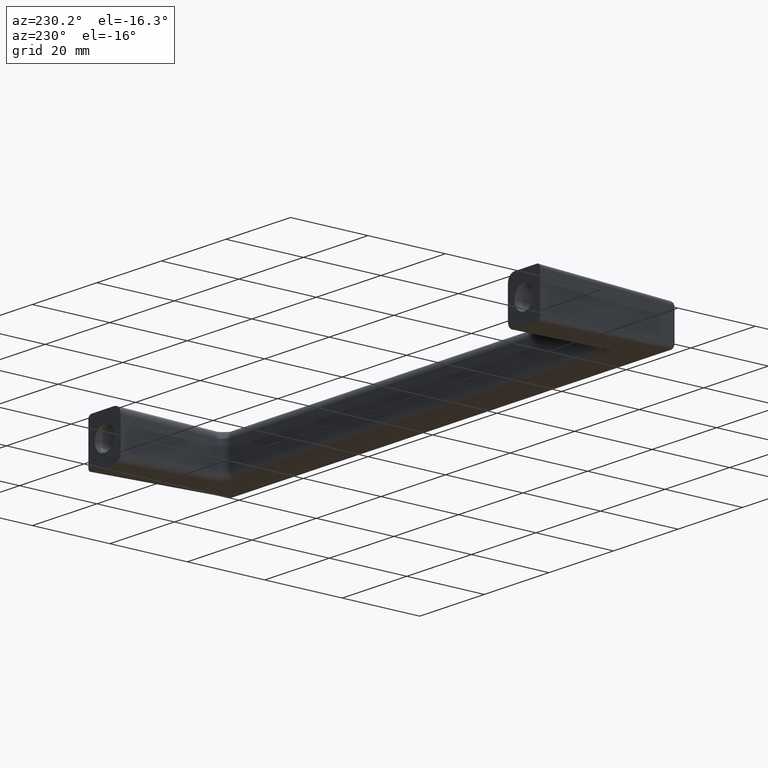
[diagram: clean part render]
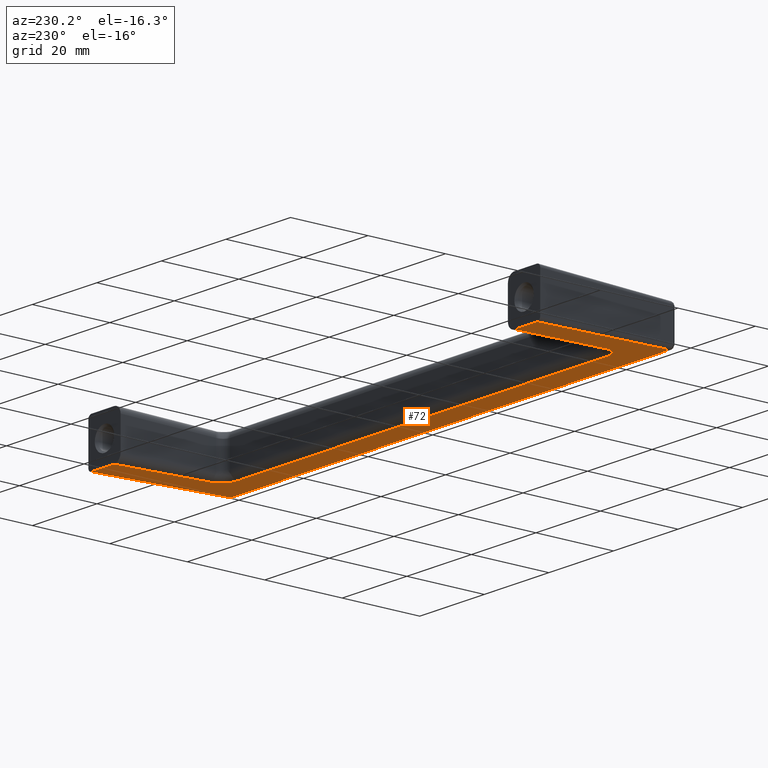
[diagram: same view with one face highlighted and labeled with its STEP entity id]
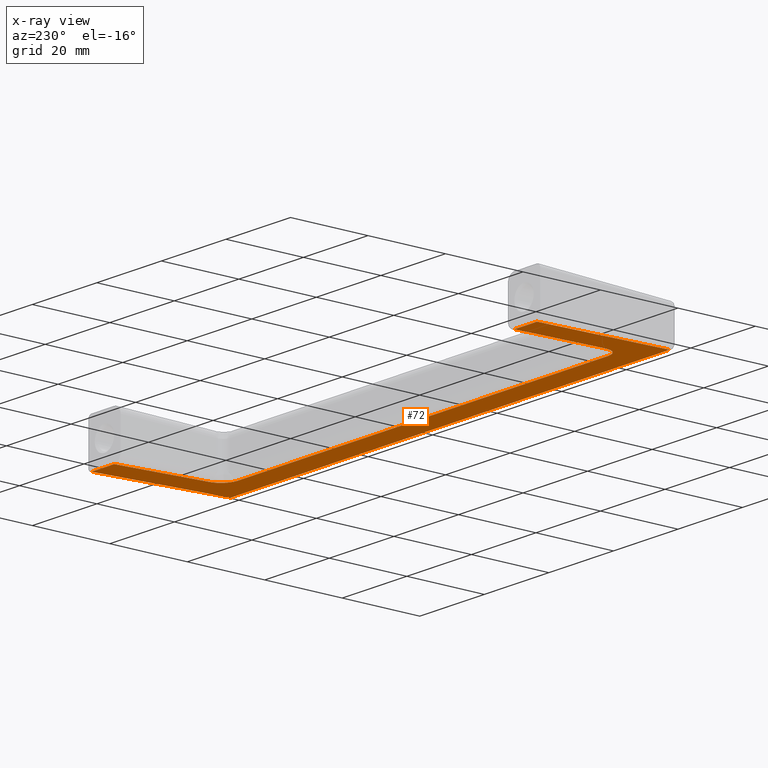
[diagram: x-ray of the same camera — body ghosted, the highlighted face saturated]
A machine part, auxiliary view. The second image highlights one B-rep face of the part: STEP entity #72.
The next image is the same camera in x-ray: the body ghosted, the highlighted face saturated — about 0% of this face is hidden behind the body in this view.
In plain terms, the highlighted planar face has unit normal (0, -0.0278, -0.9996).
Its self-contained STEP definition (entity closure, byte-faithful):
#72=ADVANCED_FACE('',(#406),#405,.T.);
#405=PLANE('',#891);
#406=FACE_OUTER_BOUND('',#892,.T.);
#888=CARTESIAN_POINT('',(-7.90003855793E+001,-2.79788250621E+001,5.09999030082E+000));
#889=DIRECTION('',(0.00000000000E+000,-2.77670672404E-002,-9.99614420653E-001));
#890=DIRECTION('',(0.00000000000E+000,9.99614420653E-001,-2.77670672404E-002));
#891=AXIS2_PLACEMENT_3D('',#888,#889,#890);
#892=EDGE_LOOP('',(#1117,#1118,#1119,#1120,#1121,#1122,#1123,#1124,#1125,#1126));
#1117=ORIENTED_EDGE('',*,*,#1271,.F.);
#1118=ORIENTED_EDGE('',*,*,#1304,.T.);
#1119=ORIENTED_EDGE('',*,*,#1309,.T.);
#1120=ORIENTED_EDGE('',*,*,#1320,.T.);
#1121=ORIENTED_EDGE('',*,*,#1350,.F.);
#1122=ORIENTED_EDGE('',*,*,#1348,.T.);
#1123=ORIENTED_EDGE('',*,*,#1346,.F.);
#1124=ORIENTED_EDGE('',*,*,#1342,.T.);
#1125=ORIENTED_EDGE('',*,*,#1334,.F.);
#1126=ORIENTED_EDGE('',*,*,#1340,.T.);
#1271=EDGE_CURVE('',#1513,#1520,#1521,.T.);
#1304=EDGE_CURVE('',#1513,#1741,#1748,.T.);
#1309=EDGE_CURVE('',#1741,#1772,#1779,.T.);
#1320=EDGE_CURVE('',#1772,#1843,#1851,.T.);
#1334=EDGE_CURVE('',#1940,#1941,#1942,.T.);
#1340=EDGE_CURVE('',#1940,#1520,#1979,.T.);
#1342=EDGE_CURVE('',#1985,#1941,#1992,.T.);
#1346=EDGE_CURVE('',#1985,#2017,#2018,.T.);
#1348=EDGE_CURVE('',#2030,#2017,#2031,.T.);
#1350=EDGE_CURVE('',#2030,#1843,#2043,.T.);
#1513=VERTEX_POINT('',#2441);
#1520=VERTEX_POINT('',#2449);
#1521=LINE('',#2450,#2451);
#1741=VERTEX_POINT('',#2614);
#1748=LINE('',#2622,#2623);
#1772=VERTEX_POINT('',#2646);
#1779=LINE('',#2654,#2655);
#1843=VERTEX_POINT('',#2712);
#1851=LINE('',#2721,#2722);
#1940=VERTEX_POINT('',#2808);
#1941=VERTEX_POINT('',#2809);
#1942=(BOUNDED_CURVE() B_SPLINE_CURVE(3,(#2810,#2811,#2812,#2813,#2814,#2815,#2816,#2817,#2818),.UNSPECIFIED.,.F.,.F.) B_SPLINE_CURVE_WITH_KNOTS((4,1,1,1,1,1,4),(1.00657446000E-007,1.06101935465E+000,1.83270817556E+000,3.18309960190E+000,4.34059515759E+000,5.40167169330E+000,6.17330231525E+000),.UNSPECIFIED.) CURVE() GEOMETRIC_REPRESENTATION_ITEM() RATIONAL_B_SPLINE_CURVE((1.00000000000E+000,1.00000000000E+000,1.00000000000E+000,1.00000000000E+000,1.00000000000E+000,1.00000000000E+000,1.00000000000E+000,1.00000000000E+000,1.00000000000E+000)) REPRESENTATION_ITEM('') );
#1979=LINE('',#2862,#2863);
#1985=VERTEX_POINT('',#2865);
#1992=LINE('',#2874,#2875);
#2017=VERTEX_POINT('',#2896);
#2018=(BOUNDED_CURVE() B_SPLINE_CURVE(3,(#2897,#2898,#2899,#2900,#2901,#2902,#2903,#2904,#2905,#2906),.UNSPECIFIED.,.F.,.F.) B_SPLINE_CURVE_WITH_KNOTS((4,1,1,1,1,1,1,4),(1.00661025000E-007,1.25397060118E+000,2.02567464957E+000,2.60444587920E+000,3.37606737953E+000,4.14775141759E+000,4.91945640923E+000,6.17342535220E+000),.UNSPECIFIED.) CURVE() GEOMETRIC_REPRESENTATION_ITEM() RATIONAL_B_SPLINE_CURVE((1.00000000000E+000,1.00000000000E+000,1.00000000000E+000,1.00000000000E+000,1.00000000000E+000,1.00000000000E+000,1.00000000000E+000,1.00000000000E+000,1.00000000000E+000,1.00000000000E+000)) REPRESENTATION_ITEM('') );
#2030=VERTEX_POINT('',#2916);
#2031=LINE('',#2917,#2918);
#2043=LINE('',#2928,#2929);
#2441=CARTESIAN_POINT('',(6.89999855793E+001,1.05517187119E+001,4.02969741821E+000));
#2449=CARTESIAN_POINT('',(6.20019173944E+001,1.05517187119E+001,4.02969741821E+000));
#2450=CARTESIAN_POINT('',(6.89999855793E+001,1.05517187119E+001,4.02969741821E+000));
#2451=VECTOR('',#2452,6.99806818486E+000);
#2452=DIRECTION('',(-1.00000000000E+000,0.00000000000E+000,0.00000000000E+000));
#2614=CARTESIAN_POINT('',(6.80272918640E+001,-2.44760483554E+001,5.00269094786E+000));
#2622=CARTESIAN_POINT('',(6.89999855793E+001,1.05517187119E+001,4.02969741821E+000));
#2623=VECTOR('',#2624,3.50547759255E+001);
#2624=DIRECTION('',(-2.77478229327E-002,-9.99229524150E-001,2.77563756708E-002));
#2646=CARTESIAN_POINT('',(-6.80273920497E+001,-2.44760483554E+001,5.00269094786E+000));
#2654=CARTESIAN_POINT('',(6.80272918640E+001,-2.44760483554E+001,5.00269094786E+000));
#2655=VECTOR('',#2656,1.36054683914E+002);
#2656=DIRECTION('',(-1.00000000000E+000,0.00000000000E+000,0.00000000000E+000));
#2712=CARTESIAN_POINT('',(-6.90003855793E+001,1.05517187119E+001,4.02969741821E+000));
#2721=CARTESIAN_POINT('',(-6.80273920497E+001,-2.44760483554E+001,5.00269094786E+000));
#2722=VECTOR('',#2723,3.50547842460E+001);
#2723=DIRECTION('',(-2.77563690827E-002,9.99229286976E-001,-2.77563690827E-002));
#2808=CARTESIAN_POINT('',(6.13298966271E+001,-1.36150032112E+001,4.70099524941E+000));
#2809=CARTESIAN_POINT('',(5.73314422663E+001,-1.75038154226E+001,4.80901781084E+000));
#2810=CARTESIAN_POINT('',(6.13298966271E+001,-1.36150032112E+001,4.70099524941E+000));
#2811=CARTESIAN_POINT('',(6.13202502260E+001,-1.39684101811E+001,4.71081210968E+000));
#2812=CARTESIAN_POINT('',(6.12217186336E+001,-1.45764938234E+001,4.72770332197E+000));
#2813=CARTESIAN_POINT('',(6.08174355405E+001,-1.55624889995E+001,4.75509207686E+000));
#2814=CARTESIAN_POINT('',(6.01425222415E+001,-1.64418475049E+001,4.77951870201E+000));
#2815=CARTESIAN_POINT('',(5.91521951842E+001,-1.71231384558E+001,4.79844345065E+000));
#2816=CARTESIAN_POINT('',(5.81995398606E+001,-1.74446613843E+001,4.80737464310E+000));
#2817=CARTESIAN_POINT('',(5.75886422168E+001,-1.75037722961E+001,4.80901661288E+000));
#2818=CARTESIAN_POINT('',(5.73314422663E+001,-1.75038154226E+001,4.80901781084E+000));
#2862=CARTESIAN_POINT('',(6.13298966271E+001,-1.36150032112E+001,4.70099524941E+000));
#2863=VECTOR('',#2864,2.41853819733E+001);
#2864=DIRECTION('',(2.77862374910E-002,9.99228457491E-001,-2.77563460414E-002));
#2865=CARTESIAN_POINT('',(-5.73325824375E+001,-1.75038154226E+001,4.80901781084E+000));
#2874=CARTESIAN_POINT('',(-5.73325824375E+001,-1.75038154226E+001,4.80901781084E+000));
#2875=VECTOR('',#2876,1.14664024704E+002);
#2876=DIRECTION('',(1.00000000000E+000,0.00000000000E+000,0.00000000000E+000));
#2896=CARTESIAN_POINT('',(-6.13310402149E+001,-1.36148802767E+001,4.70099183456E+000));
#2897=CARTESIAN_POINT('',(-5.73325824375E+001,-1.75038154226E+001,4.80901781084E+000));
#2898=CARTESIAN_POINT('',(-5.77505950396E+001,-1.75039760011E+001,4.80902227135E+000));
#2899=CARTESIAN_POINT('',(-5.84256291918E+001,-1.73968218012E+001,4.80604576580E+000));
#2900=CARTESIAN_POINT('',(-5.92254859400E+001,-1.70491960063E+001,4.79638949372E+000));
#2901=CARTESIAN_POINT('',(-5.98191586050E+001,-1.66613783716E+001,4.78561678164E+000));
#2902=CARTESIAN_POINT('',(-6.03403026927E+001,-1.61784365284E+001,4.77220173044E+000));
#2903=CARTESIAN_POINT('',(-6.07972292146E+001,-1.55524015442E+001,4.75481186977E+000));
#2904=CARTESIAN_POINT('',(-6.11941300997E+001,-1.47041640585E+001,4.73124971739E+000));
#2905=CARTESIAN_POINT('',(-6.13197331313E+001,-1.40325777441E+001,4.71259454199E+000));
#2906=CARTESIAN_POINT('',(-6.13310402149E+001,-1.36148802767E+001,4.70099183456E+000));
#2916=CARTESIAN_POINT('',(-6.20023139761E+001,1.05517187119E+001,4.02969741821E+000));
#2917=CARTESIAN_POINT('',(-6.20023139761E+001,1.05517187119E+001,4.02969741821E+000));
#2918=VECTOR('',#2919,2.41852382939E+001);
#2919=DIRECTION('',(2.77555156985E-002,-9.99229310663E-001,2.77563697406E-002));
#2928=CARTESIAN_POINT('',(-6.20023139761E+001,1.05517187119E+001,4.02969741821E+000));
#2929=VECTOR('',#2930,6.99807160328E+000);
#2930=DIRECTION('',(-1.00000000000E+000,0.00000000000E+000,0.00000000000E+000));